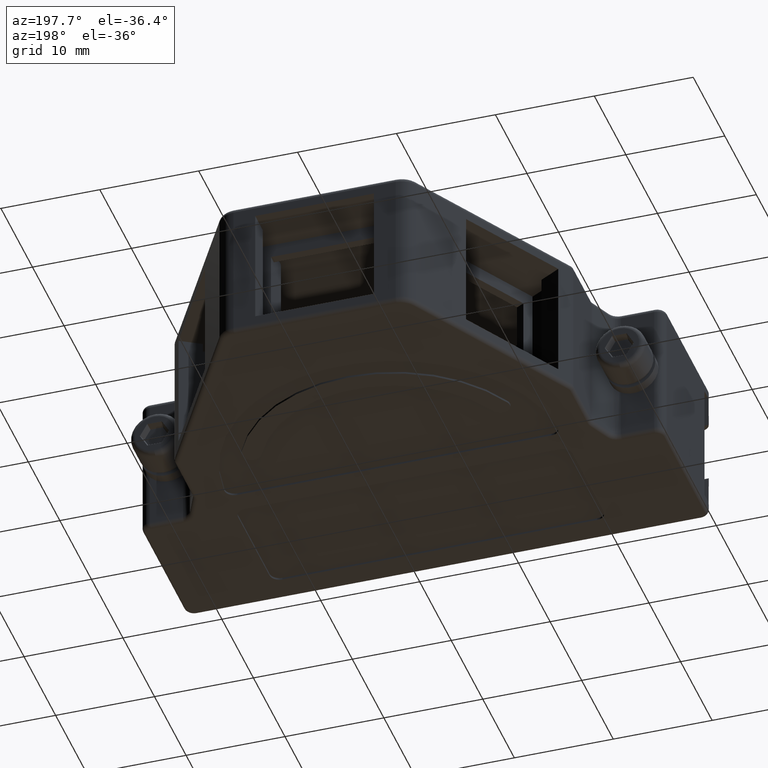
[diagram: clean part render]
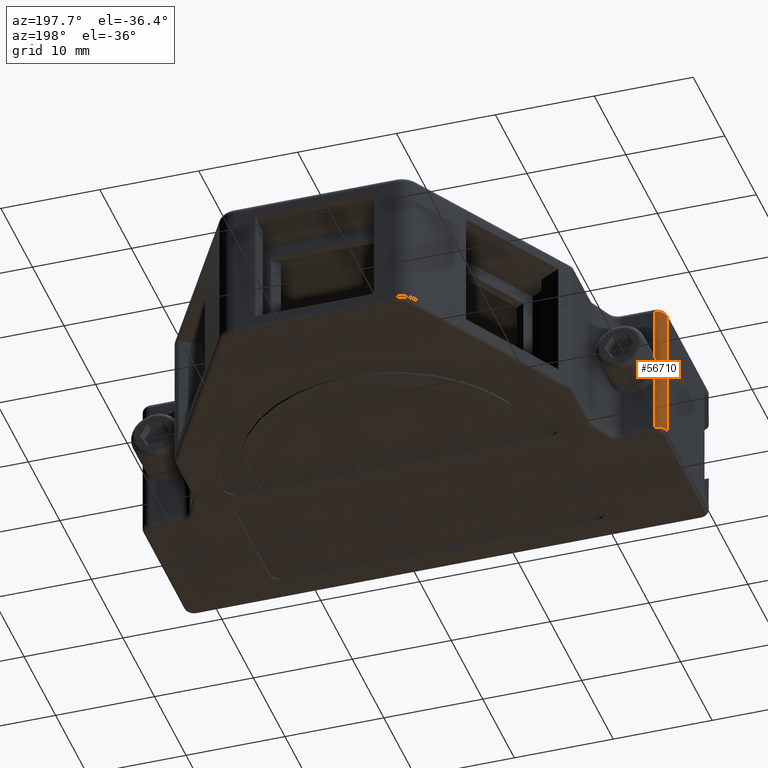
[diagram: same view with one face highlighted and labeled with its STEP entity id]
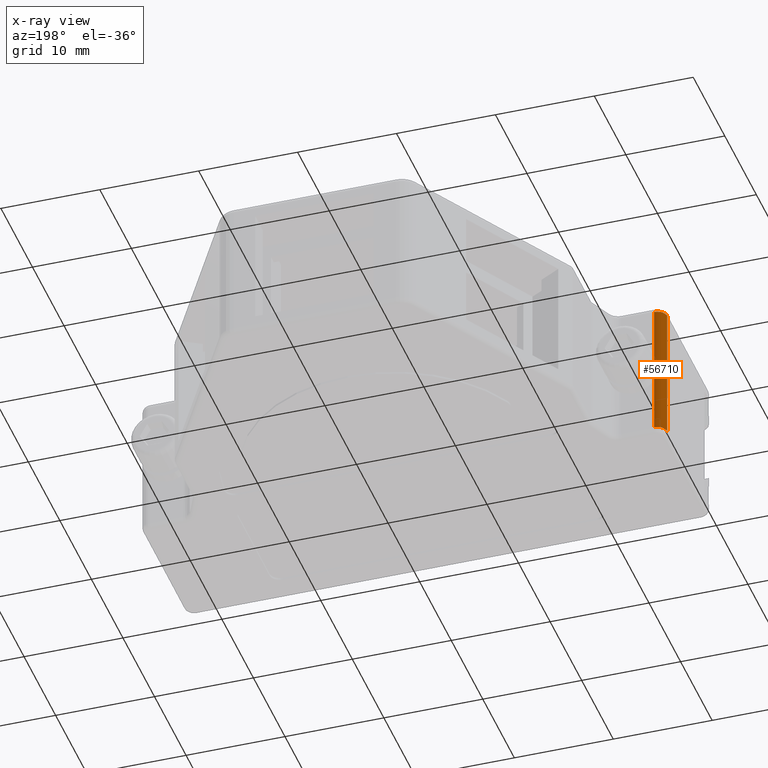
[diagram: x-ray of the same camera — body ghosted, the highlighted face saturated]
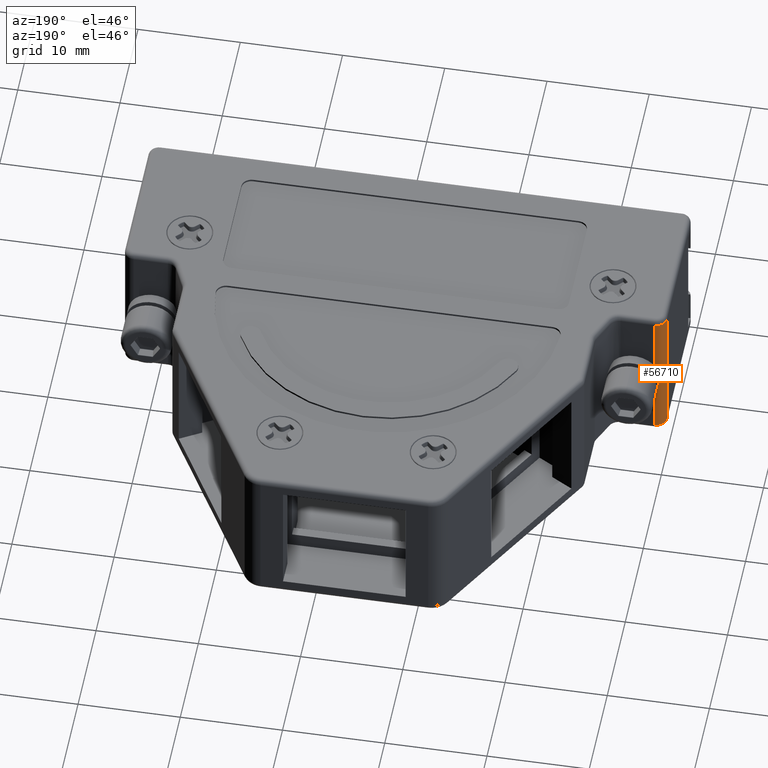
[diagram: same view with one face highlighted and labeled with its STEP entity id]
A machine part, auxiliary view. The second image highlights one B-rep face of the part: STEP entity #56710.
The next image is the same camera in x-ray: the body ghosted, the highlighted face saturated — about 0% of this face is hidden behind the body in this view.
A second angle (auxiliary view) of the same face is appended — the face is thin or edge-on in the first view.
In plain terms, the highlighted cylindrical surface (edge-blend (fillet) strip) has radius 1 mm, axis along (0, 0, -1).
Its self-contained STEP definition (entity closure, byte-faithful):
#7720=CARTESIAN_POINT('',(23.5,13.35,-34.3));
#7730=VERTEX_POINT('',#7720);
#10910=CARTESIAN_POINT('',(24.5,14.35,-34.3));
#10920=VERTEX_POINT('',#10910);
#18140=CARTESIAN_POINT('',(23.5,13.35,0.));
#18150=DIRECTION('',(0.,0.,-1.));
#18160=VECTOR('',#18150,1.);
#18170=LINE('',#18140,#18160);
#18180=CARTESIAN_POINT('',(23.5,13.35,-20.5));
#18190=VERTEX_POINT('',#18180);
#18200=EDGE_CURVE('',#18190,#7730,#18170,.T.);
#19650=CARTESIAN_POINT('',(24.5,14.35,-20.5));
#19660=VERTEX_POINT('',#19650);
#19690=CARTESIAN_POINT('',(24.5,14.35,0.));
#19700=DIRECTION('',(0.,0.,-1.));
#19710=VECTOR('',#19700,1.);
#19720=LINE('',#19690,#19710);
#19730=EDGE_CURVE('',#19660,#10920,#19720,.T.);
#56480=CARTESIAN_POINT('',(24.5,13.35,0.));
#56490=DIRECTION('',(0.,0.,-1.));
#56500=DIRECTION('',(-1.,0.,0.));
#56510=AXIS2_PLACEMENT_3D('',#56480,#56490,#56500);
#56520=CYLINDRICAL_SURFACE('',#56510,1.);
#56530=ORIENTED_EDGE('',*,*,#19730,.T.);
#56540=CARTESIAN_POINT('',(24.5,13.35,-20.5));
#56550=DIRECTION('',(0.,0.,-1.));
#56560=DIRECTION('',(-1.,0.,0.));
#56570=AXIS2_PLACEMENT_3D('',#56540,#56550,#56560);
#56580=CIRCLE('',#56570,1.);
#56590=EDGE_CURVE('',#18190,#19660,#56580,.T.);
#56600=ORIENTED_EDGE('',*,*,#56590,.T.);
#56610=ORIENTED_EDGE('',*,*,#18200,.F.);
#56620=CARTESIAN_POINT('',(24.5,13.35,-34.3));
#56630=DIRECTION('',(0.,0.,-1.));
#56640=DIRECTION('',(-1.,0.,0.));
#56650=AXIS2_PLACEMENT_3D('',#56620,#56630,#56640);
#56660=CIRCLE('',#56650,1.);
#56670=EDGE_CURVE('',#7730,#10920,#56660,.T.);
#56680=ORIENTED_EDGE('',*,*,#56670,.F.);
#56690=EDGE_LOOP('',(#56680,#56610,#56600,#56530));
#56700=FACE_OUTER_BOUND('',#56690,.T.);
#56710=ADVANCED_FACE('',(#56700),#56520,.T.);